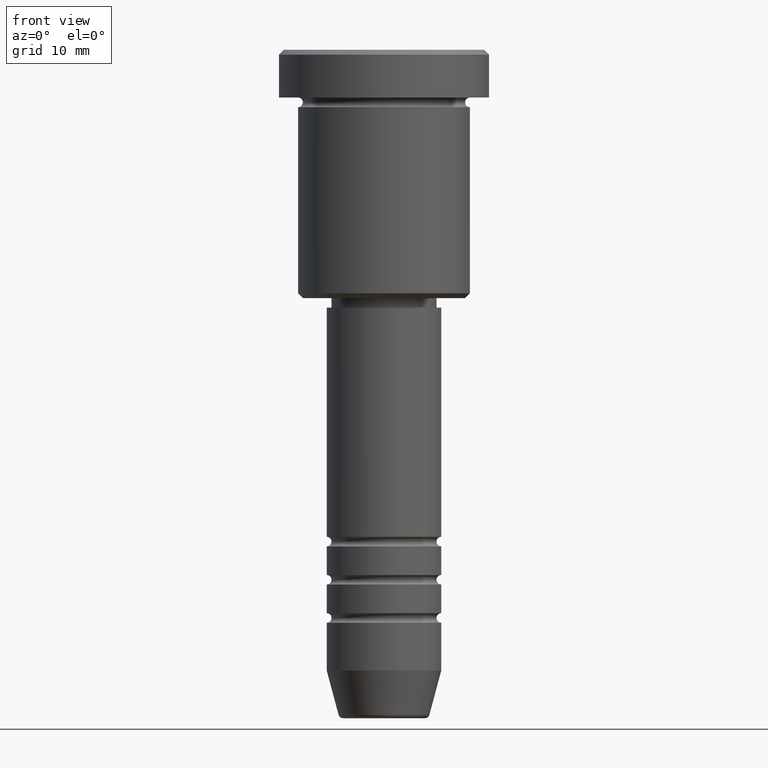
[diagram: clean part render]
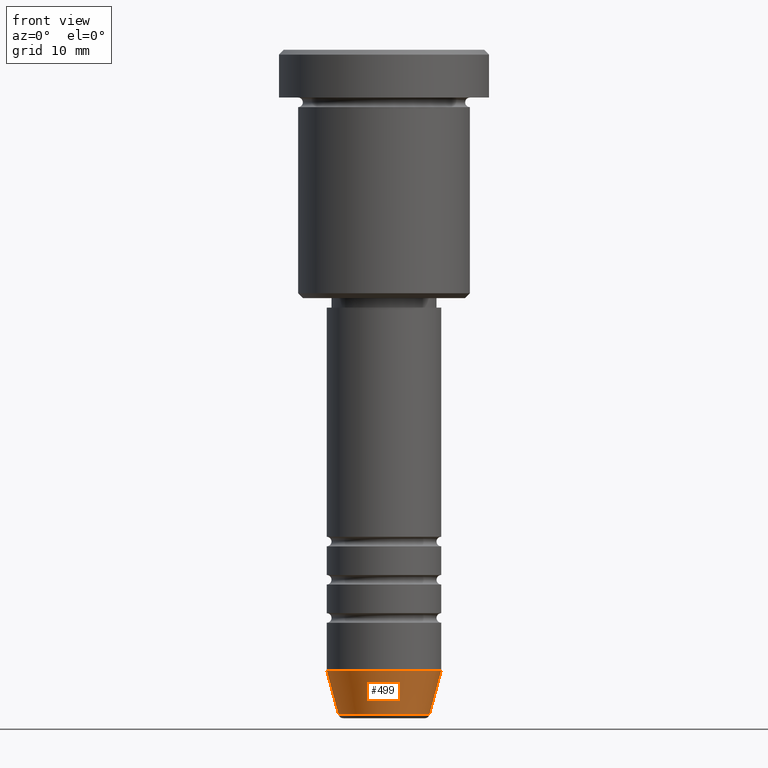
[diagram: same view with one face highlighted and labeled with its STEP entity id]
A machine part, front view. The second image highlights one B-rep face of the part: STEP entity #499.
In plain terms, the highlighted conical surface has half-angle 15 deg.
Its self-contained STEP definition (entity closure, byte-faithful):
#2 = AXIS2_PLACEMENT_3D ( 'NONE', #236, #429, #320 ) ;
#6 = DIRECTION ( 'NONE',  ( 1.000000000000000000, 0.000000000000000000, 0.000000000000000000 ) ) ;
#36 = VERTEX_POINT ( 'NONE', #245 ) ;
#43 = DIRECTION ( 'NONE',  ( 0.2588190451025213501, 0.000000000000000000, 0.9659258262890680902 ) ) ;
#61 = LINE ( 'NONE', #700, #384 ) ;
#79 = DIRECTION ( 'NONE',  ( -0.000000000000000000, -0.000000000000000000, 1.000000000000000000 ) ) ;
#116 = EDGE_LOOP ( 'NONE', ( #575, #656, #480, #1096 ) ) ;
#136 = EDGE_CURVE ( 'NONE', #36, #377, #905, .T. ) ;
#154 = VERTEX_POINT ( 'NONE', #1180 ) ;
#187 = EDGE_CURVE ( 'NONE', #993, #154, #967, .T. ) ;
#236 = CARTESIAN_POINT ( 'NONE',  ( 0.000000000000000000, 0.000000000000000000, -65.00000000000000000 ) ) ;
#245 = CARTESIAN_POINT ( 'NONE',  ( -6.000000000000000000, 7.347880794884119736E-16, -65.00000000000000000 ) ) ;
#263 = LINE ( 'NONE', #347, #677 ) ;
#320 = DIRECTION ( 'NONE',  ( 1.000000000000000000, 0.000000000000000000, 0.000000000000000000 ) ) ;
#347 = CARTESIAN_POINT ( 'NONE',  ( -6.000000000000000000, 7.347880794884119736E-16, -65.00000000000000000 ) ) ;
#370 = DIRECTION ( 'NONE',  ( -0.2588190451025213501, 3.169619151431772337E-17, 0.9659258262890680902 ) ) ;
#377 = VERTEX_POINT ( 'NONE', #850 ) ;
#384 = VECTOR ( 'NONE', #43, 1000.000000000000000 ) ;
#429 = DIRECTION ( 'NONE',  ( -0.000000000000000000, -0.000000000000000000, 1.000000000000000000 ) ) ;
#437 = DIRECTION ( 'NONE',  ( -0.000000000000000000, -0.000000000000000000, 1.000000000000000000 ) ) ;
#480 = ORIENTED_EDGE ( 'NONE', *, *, #972, .T. ) ;
#499 = ADVANCED_FACE ( 'NONE', ( #1138 ), #620, .T. ) ;
#575 = ORIENTED_EDGE ( 'NONE', *, *, #1120, .F. ) ;
#609 = CARTESIAN_POINT ( 'NONE',  ( -4.759553456999436882, 6.588326350684601277E-16, -69.62940952255127058 ) ) ;
#620 = CONICAL_SURFACE ( 'NONE', #2, 6.000000000000000000, 0.2617993877991500740 ) ;
#656 = ORIENTED_EDGE ( 'NONE', *, *, #187, .T. ) ;
#677 = VECTOR ( 'NONE', #370, 1000.000000000000000 ) ;
#700 = CARTESIAN_POINT ( 'NONE',  ( 6.000000000000000000, 0.000000000000000000, -65.00000000000000000 ) ) ;
#796 = AXIS2_PLACEMENT_3D ( 'NONE', #825, #79, #6 ) ;
#802 = DIRECTION ( 'NONE',  ( 1.000000000000000000, 0.000000000000000000, 0.000000000000000000 ) ) ;
#825 = CARTESIAN_POINT ( 'NONE',  ( 0.000000000000000000, 0.000000000000000000, -69.62940952255127058 ) ) ;
#850 = CARTESIAN_POINT ( 'NONE',  ( 6.000000000000000000, 0.000000000000000000, -65.00000000000000000 ) ) ;
#891 = CARTESIAN_POINT ( 'NONE',  ( 0.000000000000000000, 0.000000000000000000, -65.00000000000000000 ) ) ;
#905 = CIRCLE ( 'NONE', #1155, 6.000000000000000000 ) ;
#967 = CIRCLE ( 'NONE', #796, 4.759553456999436882 ) ;
#972 = EDGE_CURVE ( 'NONE', #154, #377, #61, .T. ) ;
#993 = VERTEX_POINT ( 'NONE', #609 ) ;
#1096 = ORIENTED_EDGE ( 'NONE', *, *, #136, .F. ) ;
#1120 = EDGE_CURVE ( 'NONE', #993, #36, #263, .T. ) ;
#1138 = FACE_OUTER_BOUND ( 'NONE', #116, .T. ) ;
#1155 = AXIS2_PLACEMENT_3D ( 'NONE', #891, #437, #802 ) ;
#1180 = CARTESIAN_POINT ( 'NONE',  ( 4.759553456999436882, 0.000000000000000000, -69.62940952255127058 ) ) ;